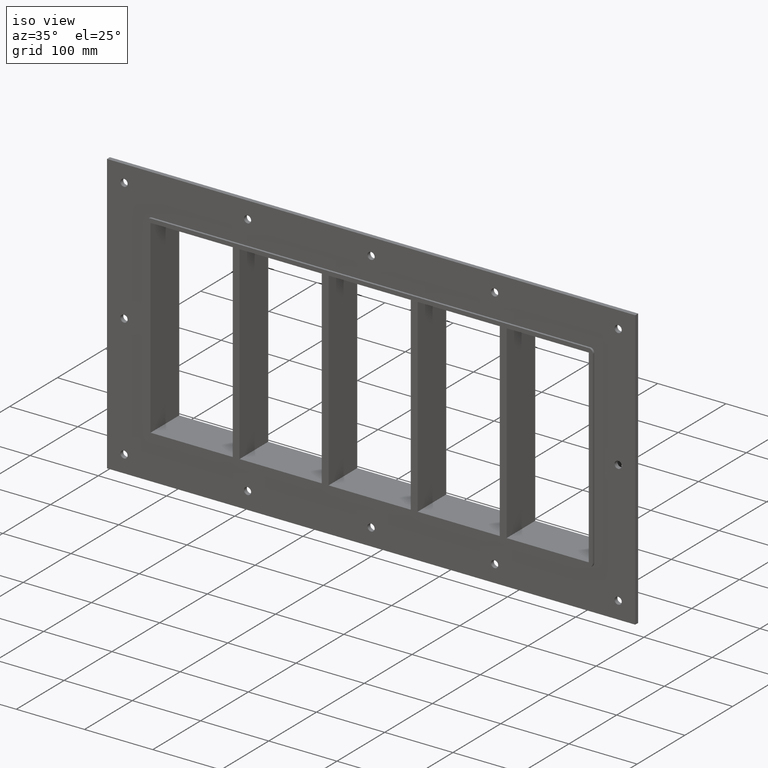
[diagram: clean part render]
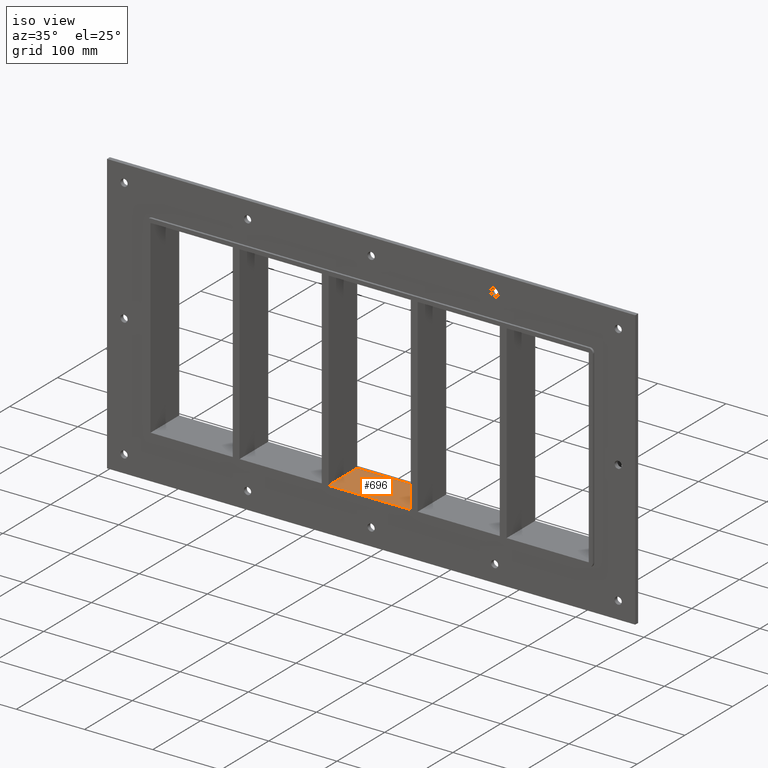
[diagram: same view with one face highlighted and labeled with its STEP entity id]
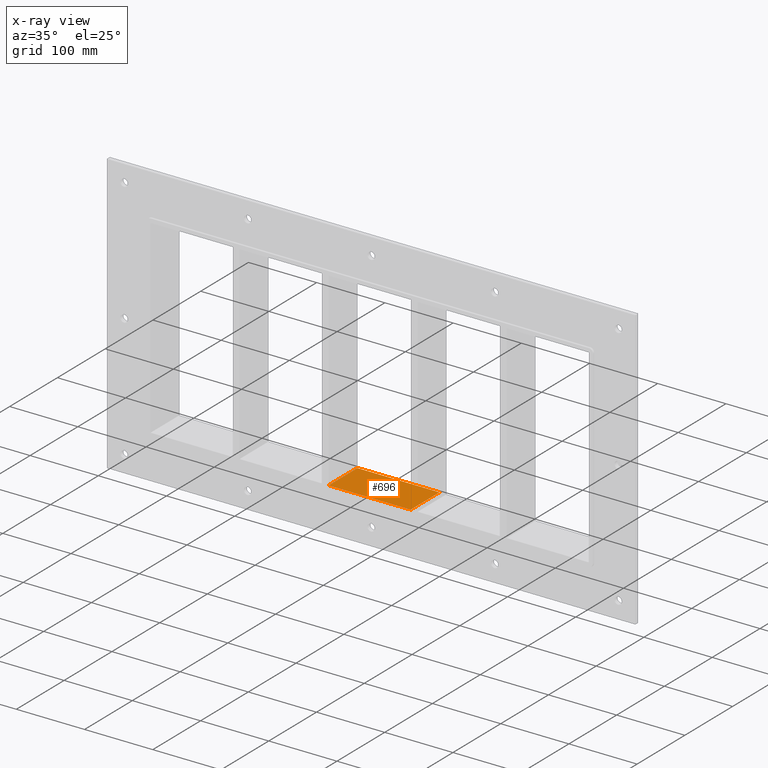
[diagram: x-ray of the same camera — body ghosted, the highlighted face saturated]
A machine part, iso view. The second image highlights one B-rep face of the part: STEP entity #696.
The next image is the same camera in x-ray: the body ghosted, the highlighted face saturated — about 0% of this face is hidden behind the body in this view.
In plain terms, the highlighted planar face has unit normal (0, 0, -1).
Its self-contained STEP definition (entity closure, byte-faithful):
#489=CARTESIAN_POINT('',(60.249999999997925,-3.0,-139.00000000000003));
#490=VERTEX_POINT('',#489);
#507=CARTESIAN_POINT('',(60.249999999997925,57.0,-139.00000000000003));
#508=VERTEX_POINT('',#507);
#515=CARTESIAN_POINT('',(60.249999999997925,-3.0,-139.00000000000003));
#516=DIRECTION('',(0.0,1.0,0.0));
#517=VECTOR('',#516,60.000000000000007);
#518=LINE('',#515,#517);
#519=EDGE_CURVE('',#490,#508,#518,.T.);
#611=CARTESIAN_POINT('',(-60.250000000007269,-3.0,-138.9999999999871));
#612=VERTEX_POINT('',#611);
#619=CARTESIAN_POINT('',(-60.250000000007269,57.0,-138.9999999999871));
#620=VERTEX_POINT('',#619);
#621=CARTESIAN_POINT('',(-60.25000000000729,57.000000000000007,-139.00000000000003));
#622=DIRECTION('',(0.0,-1.0,0.0));
#623=VECTOR('',#622,60.000000000000007);
#624=LINE('',#621,#623);
#625=EDGE_CURVE('',#620,#612,#624,.T.);
#675=CARTESIAN_POINT('',(321.25,0.0,-139.00000000000003));
#676=DIRECTION('',(0.0,0.0,-1.0));
#677=DIRECTION('',(-1.0,0.0,0.0));
#678=AXIS2_PLACEMENT_3D('',#675,#676,#677);
#679=PLANE('',#678);
#680=ORIENTED_EDGE('',*,*,#519,.T.);
#681=CARTESIAN_POINT('',(-60.250000000007276,57.0,-139.00000000000003));
#682=DIRECTION('',(1.0,0.0,0.0));
#683=VECTOR('',#682,120.5000000000052);
#684=LINE('',#681,#683);
#685=EDGE_CURVE('',#620,#508,#684,.T.);
#686=ORIENTED_EDGE('',*,*,#685,.F.);
#687=ORIENTED_EDGE('',*,*,#625,.T.);
#688=CARTESIAN_POINT('',(60.249999999997925,-3.0,-139.00000000000003));
#689=DIRECTION('',(-1.0,0.0,0.0));
#690=VECTOR('',#689,120.5000000000052);
#691=LINE('',#688,#690);
#692=EDGE_CURVE('',#490,#612,#691,.T.);
#693=ORIENTED_EDGE('',*,*,#692,.F.);
#694=EDGE_LOOP('',(#680,#686,#687,#693));
#695=FACE_OUTER_BOUND('',#694,.T.);
#696=ADVANCED_FACE('',(#695),#679,.F.);